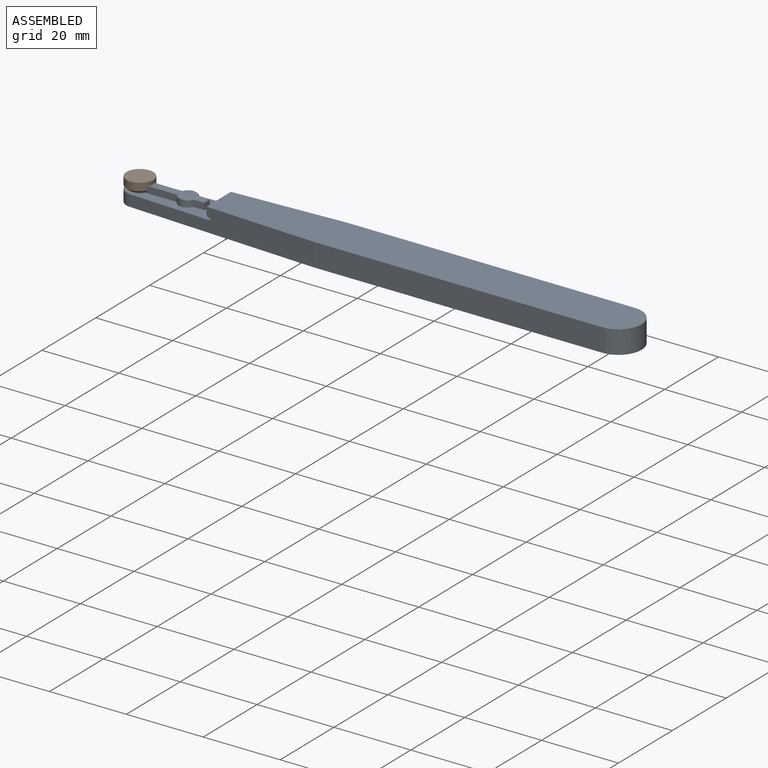
[diagram: assembled view]
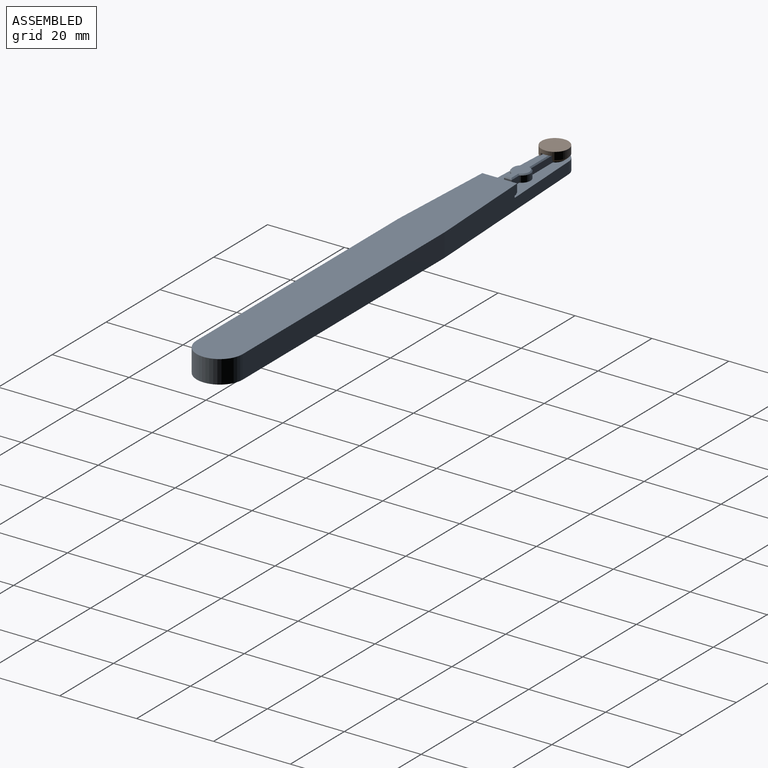
[diagram: assembled view, second angle]
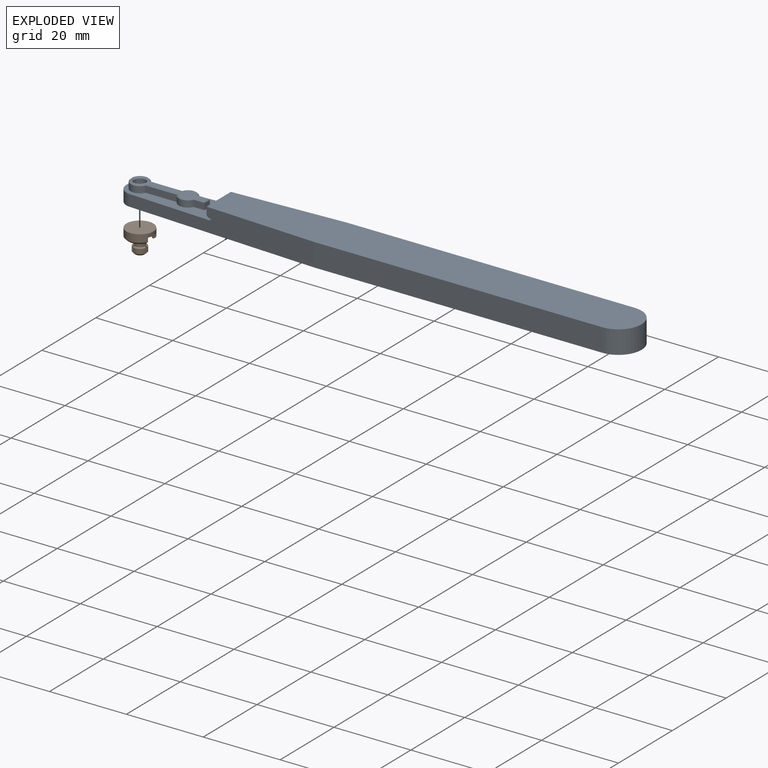
[diagram: exploded view]
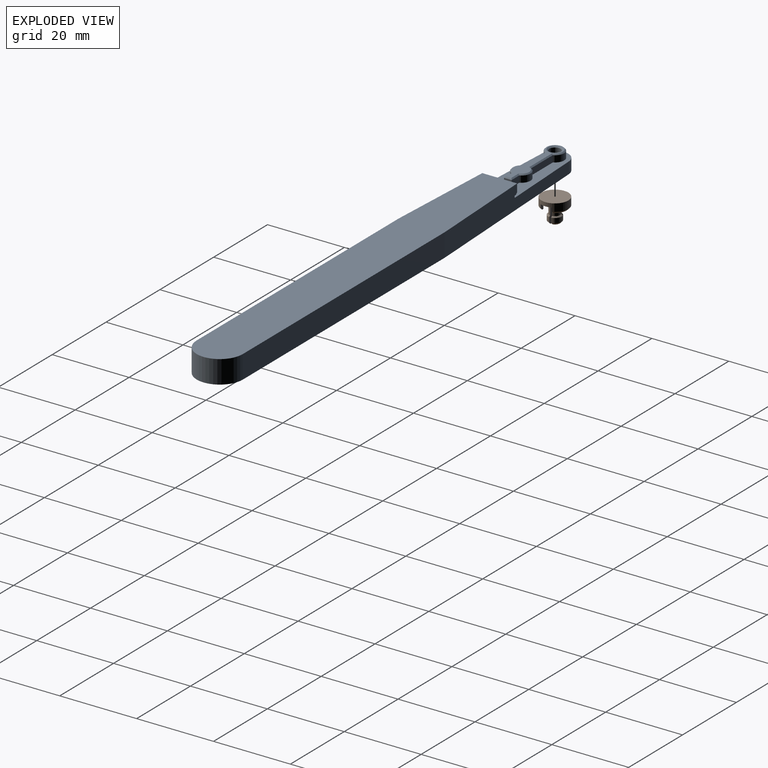
[diagram: exploded view, second angle]
ASSEMBLY  parts=2 mates=3
PART A: 36 faces, bbox 134x12x6 mm
  f0: cylinder r=1.5mm len=3mm, axis (0,0,1), area 25.4mm2, adj f17,f35
  f1: plane 74.87x6mm, normal (0,-1,0), area 449.2mm2, adj f5,f6,f7,f33
  f2: plane 74.87x6mm, normal (0,1,0), area 449.2mm2, adj f5,f6,f7,f32
  f3: plane 9.18x0.5mm, normal (-1,0,0), area 4.6mm2, adj f4,f27,f30,f31
  f4: plane 25x9.18mm, normal (0,0,1), area 136mm2, adj f3,f8,f9,f10,f11,f12,f13,f14
  f5: cylinder r=6mm len=12mm, axis (0,0,-1), area 113.1mm2, adj f1,f2,f6,f7
  f6: plane 110x12mm, normal (0,0,1), area 1262.1mm2, adj f1,f2,f5,f26,f30,f31,f32,f33
  f7: plane 134x12mm, normal (0,0,-1), area 1436.6mm2, adj f1,f2,f5,f29,f30,f31,f32,f33
  f8: cylinder r=2.4mm len=4.8mm, axis (0,0,-1), area 22.1mm2, adj f4,f9,f15,f21
  f9: plane 8.14x1.7mm, normal (0,-1,0), area 13.8mm2, adj f4,f8,f10,f23
  f10: cylinder r=2.4mm len=4.36mm, axis (0,0,-1), area 9.3mm2, adj f4,f9,f11,f25
  f11: plane 2.82x1.7mm, normal (0,-1,0), area 4.8mm2, adj f4,f10,f12,f24
  f12: plane 2x1.7mm, normal (1,0,0), area 3.4mm2, adj f4,f11,f13,f22
  f13: plane 2.82x1.7mm, normal (0,1,0), area 4.8mm2, adj f4,f12,f14,f20
  f14: cylinder r=2.4mm len=4.36mm, axis (0,0,-1), area 9.3mm2, adj f4,f13,f15,f18
  f15: plane 8.14x1.7mm, normal (0,1,0), area 13.8mm2, adj f4,f8,f14,f19
  f16: plane 19.3x4.2mm, normal (0,0,1), area 33mm2, adj f17,f18,f19,f20,f21,f22,f23,f24
  f17: cone r=1.5mm half-angle=45deg, axis (0,0,1), area 4.4mm2, adj f0,f16
  f18: cone r=2.1mm half-angle=45deg, axis (0,0,-1), area 2.3mm2, adj f14,f16,f19,f20
  f19: plane 8.55x0.31mm, normal (0,0.71,0.71), area 3.5mm2, adj f15,f16,f18,f21
  f20: plane 3.03x0.31mm, normal (0,0.71,0.71), area 1.2mm2, adj f13,f16,f18,f22
  f21: cone r=2.1mm half-angle=45deg, axis (0,0,-1), area 5.3mm2, adj f8,f16,f19,f23
  f22: plane 2x0.3mm, normal (0.71,0,0.71), area 0.7mm2, adj f12,f16,f20,f24
  f23: plane 8.55x0.31mm, normal (0,-0.71,0.71), area 3.5mm2, adj f9,f16,f21,f25
  f24: plane 3.03x0.31mm, normal (0,-0.71,0.71), area 1.2mm2, adj f11,f16,f22,f25
  f25: cone r=2.1mm half-angle=45deg, axis (0,0,-1), area 2.3mm2, adj f10,f16,f23,f24
  f26: plane 9.08x2mm, normal (-1,0,0), area 18.2mm2, adj f6,f28,f30,f31
  f27: plane 9.18x0.5mm, normal (0,0,-1), area 4.6mm2, adj f3,f28,f30,f31
  f28: plane 9.13x0.5mm, normal (-0.71,0,-0.71), area 6.4mm2, adj f26,f27,f30,f31
  f29: cylinder r=3.5mm len=6.99mm, axis (0,0,-1), area 31.9mm2, adj f4,f7,f30,f31
  f30: plane 49.55x6mm, normal (-0.05,1,0), area 234.9mm2, adj f3,f4,f6,f7,f26,f27,f28,f29
  f31: plane 49.55x6mm, normal (-0.05,-1,0), area 234.9mm2, adj f3,f4,f6,f7,f26,f27,f28,f29
  f32: cylinder r=5mm len=6mm, axis (0,0,-1), area 1.5mm2, adj f2,f6,f7,f30
  f33: cylinder r=5mm len=6mm, axis (0,0,1), area 1.5mm2, adj f1,f6,f7,f31
  f34: cylinder r=1.75mm len=3.5mm, axis (0,0,-1), area 19.2mm2, adj f7,f35
  f35: cone r=1.75mm half-angle=45deg, axis (0,0,-1), area 3.6mm2, adj f0,f34
PART B: 35 faces, bbox 7x7x6 mm
  f0: cylinder r=1.4mm len=3mm, axis (0,0,1), area 7.3mm2, adj f2,f22,f31,f32
  f1: cylinder r=1.75mm len=2.75mm, axis (0,0,-1), area 4mm2, adj f4,f5,f31,f32
  f2: plane 2.31x0.59mm, normal (0,0,1), area 0.3mm2, adj f0,f5,f31,f32
  f3: plane 1.87x0.68mm, normal (0,0,-1), area 0.8mm2, adj f4,f6,f31,f32
  f4: cone r=1.25mm half-angle=45deg, axis (0,0,1), area 1.9mm2, adj f1,f3,f31,f32
  f5: cone r=1.75mm half-angle=45deg, axis (0,0,-1), area 1mm2, adj f1,f2,f31,f32
  f6: cylinder r=0.75mm len=5mm, axis (0,0,-1), area 5.3mm2, adj f3,f22,f31,f32
  f7: cylinder r=1.4mm len=3mm, axis (0,0,1), area 7.3mm2, adj f9,f22,f29,f30
  f8: cylinder r=1.75mm len=2.38mm, axis (0,0,-1), area 4mm2, adj f11,f12,f29,f30
  f9: plane 2x1.25mm, normal (0,0,1), area 0.3mm2, adj f7,f12,f29,f30
  f10: plane 1.62x1mm, normal (0,0,-1), area 0.8mm2, adj f11,f13,f29,f30
  f11: cone r=1.25mm half-angle=45deg, axis (0,0,1), area 1.9mm2, adj f8,f10,f29,f30
  f12: cone r=1.75mm half-angle=45deg, axis (0,0,-1), area 1mm2, adj f8,f9,f29,f30
  f13: cylinder r=0.75mm len=5mm, axis (0,0,-1), area 5.3mm2, adj f10,f22,f29,f30
  f14: cylinder r=1.4mm len=3mm, axis (0,0,1), area 7.3mm2, adj f16,f22,f28,f33
  f15: cylinder r=1.75mm len=2.38mm, axis (0,0,-1), area 4mm2, adj f18,f19,f28,f33
  f16: plane 2x1.25mm, normal (0,0,1), area 0.3mm2, adj f14,f19,f28,f33
  f17: plane 1.62x1mm, normal (0,0,-1), area 0.8mm2, adj f18,f20,f28,f33
  f18: cone r=1.25mm half-angle=45deg, axis (0,0,1), area 1.9mm2, adj f15,f17,f28,f33
  f19: cone r=1.75mm half-angle=45deg, axis (0,0,-1), area 1mm2, adj f15,f16,f28,f33
  f20: cylinder r=0.75mm len=5mm, axis (0,0,-1), area 5.3mm2, adj f17,f22,f28,f33
  f21: plane 6x5.6mm, normal (0,0,-1), area 5.8mm2, adj f23,f26,f27,f34
  f22: plane 6.1x5.2mm, normal (0,0,-1), area 20.7mm2, adj f0,f6,f7,f13,f14,f20,f23,f25
  f23: cylinder r=2.6mm len=5.2mm, axis (0,0,1), area 19.7mm2, adj f21,f22,f26,f27
  f24: plane 7x7mm, normal (0,0,1), area 38.5mm2, adj f25
  f25: cylinder r=3.5mm len=7mm, axis (0,0,-1), area 40.9mm2, adj f22,f24,f26,f27,f34
  f26: plane 1.52x1.06mm, normal (-1,0,0), area 1.4mm2, adj f21,f22,f23,f25,f34
  f27: plane 1.52x1.06mm, normal (1,0,0), area 1.4mm2, adj f21,f22,f23,f25,f34
  f28: plane 5.01x1.04mm, normal (-1,0,0), area 3.9mm2, adj f14,f15,f16,f17,f18,f19,f20,f22
  f29: plane 5.01x1.04mm, normal (1,0,0), area 3.9mm2, adj f7,f8,f9,f10,f11,f12,f13,f22
  f30: plane 5.01x0.9mm, normal (0.5,-0.87,0), area 3.9mm2, adj f7,f8,f9,f10,f11,f12,f13,f22
  f31: plane 5.01x0.9mm, normal (-0.5,0.87,0), area 3.9mm2, adj f0,f1,f2,f3,f4,f5,f6,f22
  f32: plane 5.01x0.9mm, normal (0.5,0.87,0), area 3.9mm2, adj f0,f1,f2,f3,f4,f5,f6,f22
  f33: plane 5.01x0.9mm, normal (-0.5,-0.87,0), area 3.9mm2, adj f14,f15,f16,f17,f18,f19,f20,f22
  f34: cone r=3.5mm half-angle=45deg, axis (0,0,1), area 12.2mm2, adj f21,f25,f26,f27
PLACE A t=(37.26,8.21,15.68)mm fixed
PLACE B rot(axis=(0,0,-1),90deg) t=(-12.24,8.21,17.68)mm
MATE planar A.f16 <-> B.f22  axis (0,0,1) through (-1.72,8.91,17.68)mm
MATE parallel B.f27 <-> A.f15  axis (0,-1,0) through (-9.63,9.71,16.98)mm
MATE cylindrical A.f0 <-> B.f0  axis (0,0,1) through (-12.24,8.21,17.38)mm
